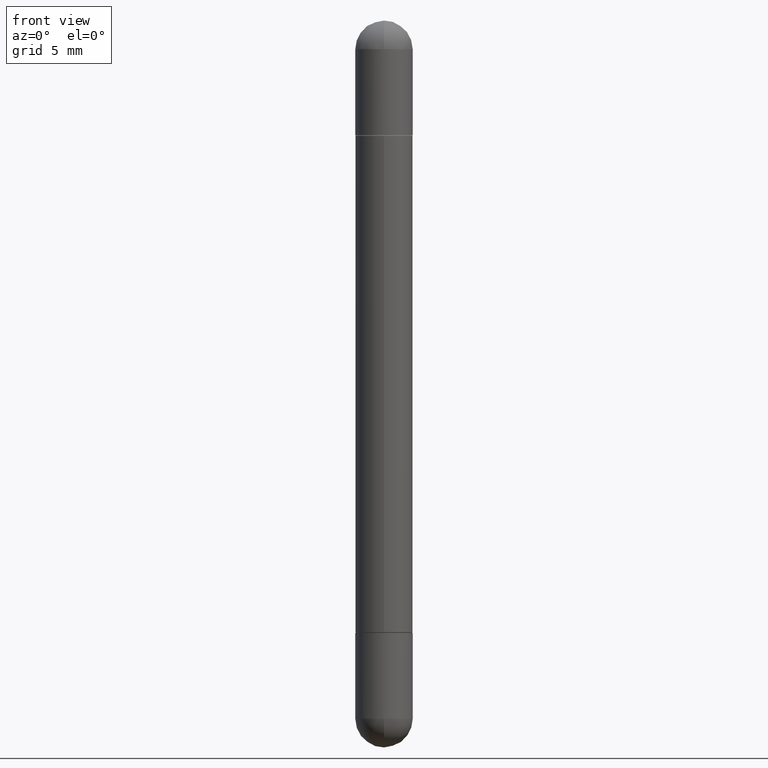
[diagram: clean part render]
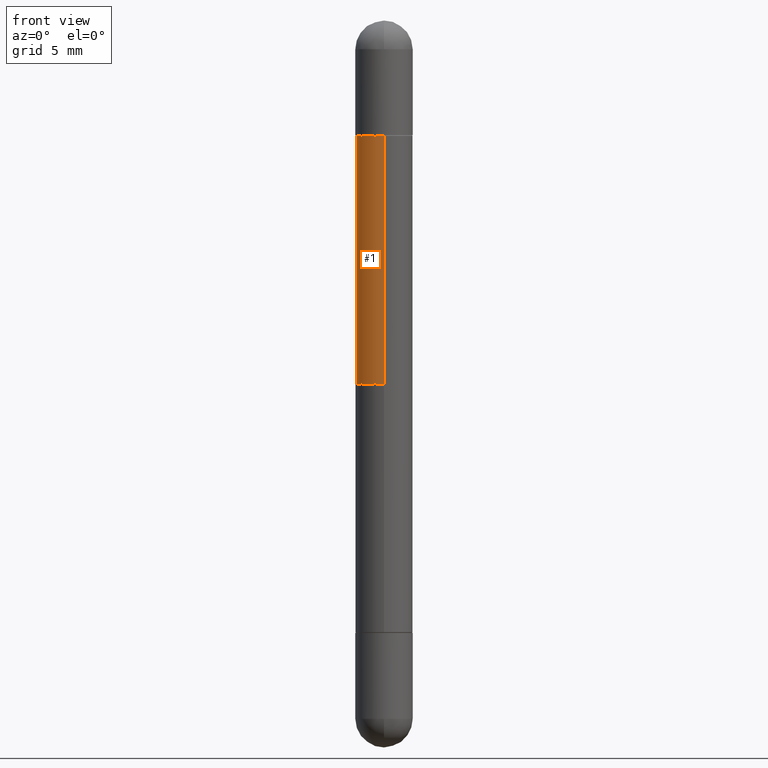
[diagram: same view with one face highlighted and labeled with its STEP entity id]
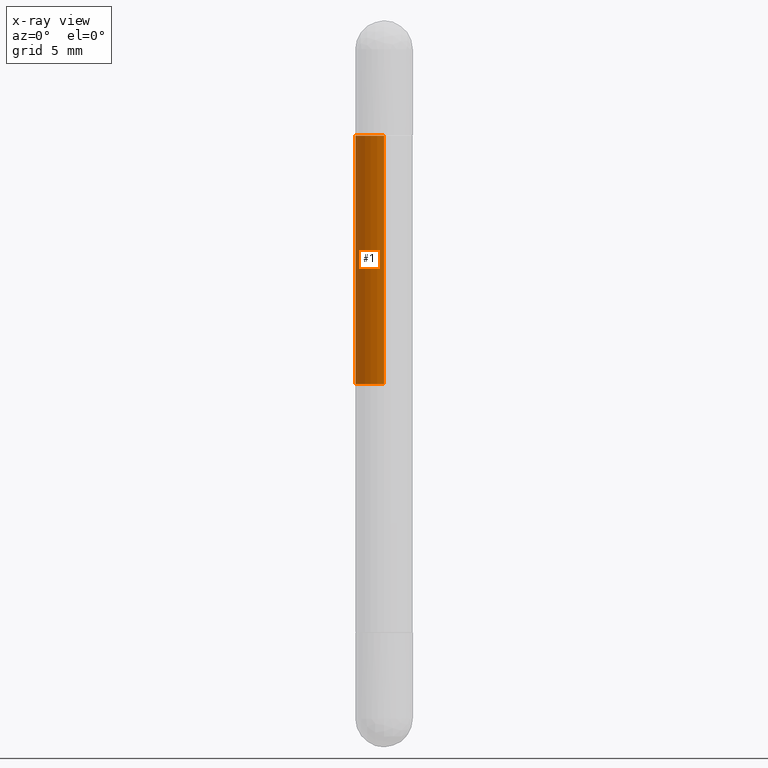
[diagram: x-ray of the same camera — body ghosted, the highlighted face saturated]
A machine part, front view. The second image highlights one B-rep face of the part: STEP entity #1.
The next image is the same camera in x-ray: the body ghosted, the highlighted face saturated — about 0% of this face is hidden behind the body in this view.
In plain terms, the highlighted cylindrical surface (edge-blend (fillet) strip) has radius 1.4999 mm, axis along (-0, 0, -1).
Its self-contained STEP definition (entity closure, byte-faithful):
#1 = ADVANCED_FACE ( 'NONE', ( #373 ), #294, .T. ) ;
#34 = CARTESIAN_POINT ( 'NONE',  ( -4.123439461173503176E-16, -0.05905000000000273225, -0.7480500000000001037 ) ) ;
#89 = VERTEX_POINT ( 'NONE', #261 ) ;
#100 = EDGE_CURVE ( 'NONE', #89, #368, #483, .T. ) ;
#101 = CARTESIAN_POINT ( 'NONE',  ( -4.123439461173447462E-16, -0.05905000000000460575, -0.2372000000000006048 ) ) ;
#126 = DIRECTION ( 'NONE',  ( -2.436217411608901762E-29, 3.504729862432993051E-15, -1.000000000000000000 ) ) ;
#127 = DIRECTION ( 'NONE',  ( -0.000000000000000000, -0.000000000000000000, -1.000000000000000000 ) ) ;
#132 = AXIS2_PLACEMENT_3D ( 'NONE', #197, #443, #697 ) ;
#142 = EDGE_CURVE ( 'NONE', #89, #633, #448, .T. ) ;
#153 = LINE ( 'NONE', #269, #161 ) ;
#161 = VECTOR ( 'NONE', #792, 39.37007874015748143 ) ;
#180 = ORIENTED_EDGE ( 'NONE', *, *, #142, .T. ) ;
#190 = CIRCLE ( 'NONE', #580, 0.05905000000000010935 ) ;
#197 = CARTESIAN_POINT ( 'NONE',  ( 3.066954099474445427E-29, -4.412104423816894062E-15, -0.2372000000000004105 ) ) ;
#201 = CARTESIAN_POINT ( 'NONE',  ( 4.051124067684096571E-16, 0.05905000000000010935, -1.496099999999999985 ) ) ;
#225 = VECTOR ( 'NONE', #126, 39.37007874015748143 ) ;
#233 = VERTEX_POINT ( 'NONE', #34 ) ;
#261 = CARTESIAN_POINT ( 'NONE',  ( 4.051124067684410143E-16, 0.05904999999999580029, -0.2372000000000002162 ) ) ;
#269 = CARTESIAN_POINT ( 'NONE',  ( -4.123439461173747722E-16, -0.05905000000000010935, -1.496100000000000430 ) ) ;
#294 = CYLINDRICAL_SURFACE ( 'NONE', #602, 0.05905000000000010935 ) ;
#327 = CARTESIAN_POINT ( 'NONE',  ( 4.051124067684402255E-16, 0.05904999999999747951, -0.7480500000000001037 ) ) ;
#353 = CARTESIAN_POINT ( 'NONE',  ( 0.000000000000000000, 0.000000000000000000, -1.496100000000000207 ) ) ;
#368 = VERTEX_POINT ( 'NONE', #101 ) ;
#371 = CARTESIAN_POINT ( 'NONE',  ( 1.822412434754038989E-29, -2.621713173593000683E-15, -0.7480500000000001037 ) ) ;
#373 = FACE_OUTER_BOUND ( 'NONE', #636, .T. ) ;
#437 = DIRECTION ( 'NONE',  ( -1.000000000000000000, 0.000000000000000000, 0.000000000000000000 ) ) ;
#443 = DIRECTION ( 'NONE',  ( 2.436217411608901481E-29, -3.504729862432993051E-15, 1.000000000000000000 ) ) ;
#448 = LINE ( 'NONE', #201, #225 ) ;
#483 = CIRCLE ( 'NONE', #132, 0.05905000000000020649 ) ;
#524 = EDGE_CURVE ( 'NONE', #233, #633, #190, .T. ) ;
#580 = AXIS2_PLACEMENT_3D ( 'NONE', #371, #127, #437 ) ;
#602 = AXIS2_PLACEMENT_3D ( 'NONE', #353, #741, #805 ) ;
#620 = ORIENTED_EDGE ( 'NONE', *, *, #524, .F. ) ;
#633 = VERTEX_POINT ( 'NONE', #327 ) ;
#636 = EDGE_LOOP ( 'NONE', ( #739, #180, #620, #756 ) ) ;
#697 = DIRECTION ( 'NONE',  ( -6.982962677686265922E-15, -1.000000000000000000, -3.469747663417765169E-15 ) ) ;
#701 = EDGE_CURVE ( 'NONE', #368, #233, #153, .T. ) ;
#739 = ORIENTED_EDGE ( 'NONE', *, *, #100, .F. ) ;
#741 = DIRECTION ( 'NONE',  ( -2.436217411608901481E-29, 3.504729862432993051E-15, -1.000000000000000000 ) ) ;
#756 = ORIENTED_EDGE ( 'NONE', *, *, #701, .F. ) ;
#792 = DIRECTION ( 'NONE',  ( -2.436217411608901762E-29, 3.504729862432993051E-15, -1.000000000000000000 ) ) ;
#805 = DIRECTION ( 'NONE',  ( -6.982962677686265922E-15, -1.000000000000000000, -4.626330217890360659E-15 ) ) ;